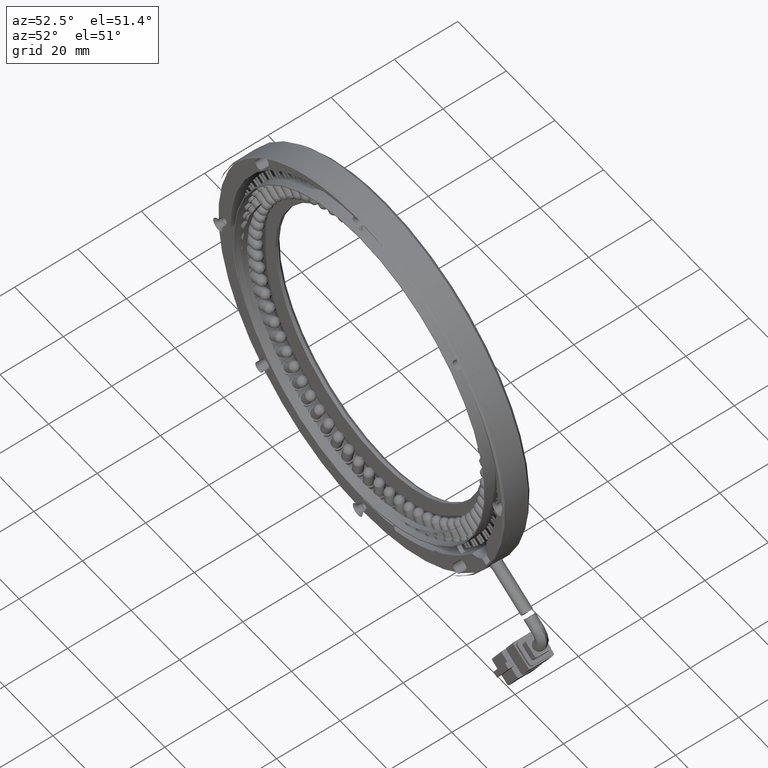
[diagram: clean part render]
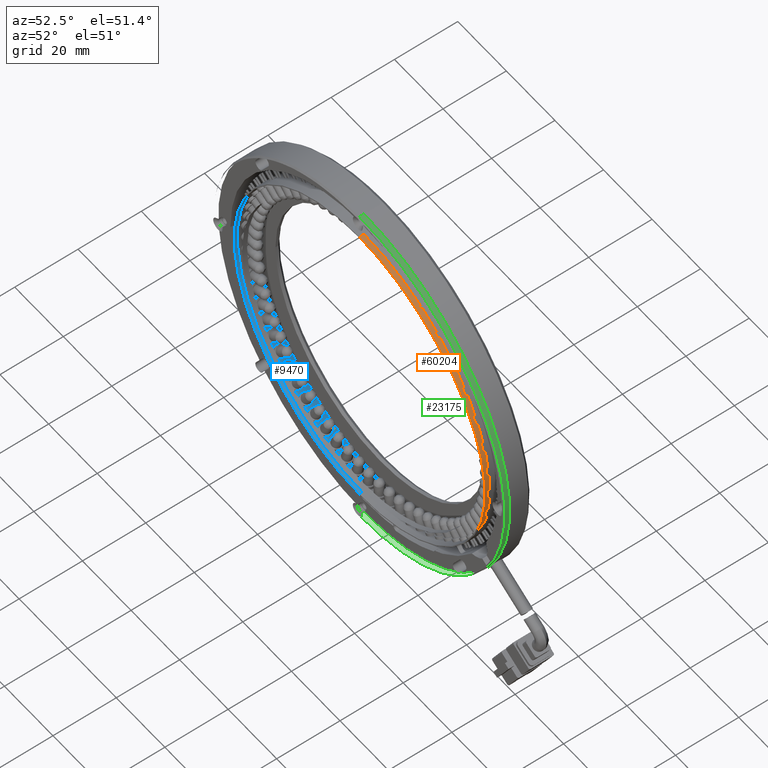
[diagram: same view with three faces highlighted in distinct colors, each labeled with its STEP entity id]
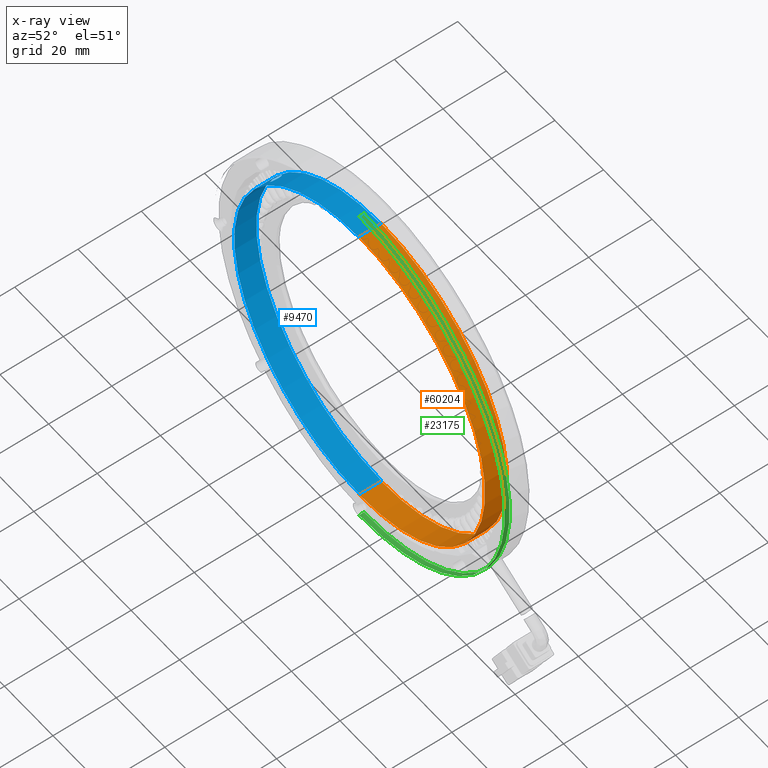
[diagram: x-ray of the same camera — body ghosted, the three highlighted faces saturated]
A machine part, auxiliary view with three faces highlighted in distinct colors.
The next image is the same camera in x-ray (body ghosted, the three faces saturated) — at least one of them is partly hidden behind the body in this view.
Their STEP definitions:

[orange] entity #60204 — the highlighted cylindrical surface (partial cylindrical patch) has radius 51.8 mm, axis along (-0, -1, -0).
#1322 = DIRECTION ( 'NONE',  ( 0.0000000000000000000, 0.0000000000000000000, -1.000000000000000000 ) ) ;
#1530 = AXIS2_PLACEMENT_3D ( 'NONE', #60681, #30969, #1322 ) ;
#2076 = VERTEX_POINT ( 'NONE', #24092 ) ;
#3813 = CARTESIAN_POINT ( 'NONE',  ( 56.45624510954999000, 26.51889671361344700, 0.0000000000000000000 ) ) ;
#5472 = DIRECTION ( 'NONE',  ( -0.0000000000000000000, -1.000000000000000000, -0.0000000000000000000 ) ) ;
#6049 = CARTESIAN_POINT ( 'NONE',  ( 56.45624510954999000, 19.51889671361662300, -51.79999999999999700 ) ) ;
#12921 = AXIS2_PLACEMENT_3D ( 'NONE', #3813, #18672, #38485 ) ;
#15209 = CARTESIAN_POINT ( 'NONE',  ( 56.45624510954999700, 19.51889671361662300, 51.79999999999999700 ) ) ;
#16463 = FACE_OUTER_BOUND ( 'NONE', #23791, .T. ) ;
#18402 = DIRECTION ( 'NONE',  ( 0.0000000000000000000, 1.000000000000000000, 0.0000000000000000000 ) ) ;
#18534 = EDGE_CURVE ( 'NONE', #2076, #25043, #30769, .T. ) ;
#18672 = DIRECTION ( 'NONE',  ( -0.0000000000000000000, -1.000000000000000000, -0.0000000000000000000 ) ) ;
#18977 = CARTESIAN_POINT ( 'NONE',  ( 56.45624510954999000, 26.51889671361344700, -51.79999999999999700 ) ) ;
#21202 = ORIENTED_EDGE ( 'NONE', *, *, #64051, .T. ) ;
#22665 = VECTOR ( 'NONE', #61092, 1000.000000000000000 ) ;
#23791 = EDGE_LOOP ( 'NONE', ( #54042, #21202, #38189, #26624 ) ) ;
#24092 = CARTESIAN_POINT ( 'NONE',  ( 56.45624510954999700, 26.51889671361344700, 51.79999999999999700 ) ) ;
#25043 = VERTEX_POINT ( 'NONE', #18977 ) ;
#26451 = CARTESIAN_POINT ( 'NONE',  ( 56.45624510954999000, 26.51889671361344700, -51.79999999999999700 ) ) ;
#26624 = ORIENTED_EDGE ( 'NONE', *, *, #59943, .F. ) ;
#30769 = CIRCLE ( 'NONE', #55047, 51.79999999999999700 ) ;
#30969 = DIRECTION ( 'NONE',  ( 0.0000000000000000000, 1.000000000000000000, 0.0000000000000000000 ) ) ;
#32054 = VECTOR ( 'NONE', #5472, 1000.000000000000000 ) ;
#35149 = CARTESIAN_POINT ( 'NONE',  ( 56.45624510954999700, 26.51889671361344700, 51.79999999999999700 ) ) ;
#37341 = LINE ( 'NONE', #26451, #22665 ) ;
#38189 = ORIENTED_EDGE ( 'NONE', *, *, #52060, .T. ) ;
#38485 = DIRECTION ( 'NONE',  ( 0.0000000000000000000, 0.0000000000000000000, -1.000000000000000000 ) ) ;
#45249 = LINE ( 'NONE', #35149, #32054 ) ;
#47951 = VERTEX_POINT ( 'NONE', #6049 ) ;
#48017 = CARTESIAN_POINT ( 'NONE',  ( 56.45624510954999000, 26.51889671361344700, 0.0000000000000000000 ) ) ;
#51206 = CIRCLE ( 'NONE', #1530, 51.79999999999999700 ) ;
#52060 = EDGE_CURVE ( 'NONE', #55364, #47951, #51206, .T. ) ;
#52992 = DIRECTION ( 'NONE',  ( 0.0000000000000000000, 0.0000000000000000000, -1.000000000000000000 ) ) ;
#54042 = ORIENTED_EDGE ( 'NONE', *, *, #18534, .F. ) ;
#55047 = AXIS2_PLACEMENT_3D ( 'NONE', #48017, #18402, #52992 ) ;
#55364 = VERTEX_POINT ( 'NONE', #15209 ) ;
#59943 = EDGE_CURVE ( 'NONE', #25043, #47951, #37341, .T. ) ;
#60204 = ADVANCED_FACE ( 'NONE', ( #16463 ), #62815, .T. ) ;
#60681 = CARTESIAN_POINT ( 'NONE',  ( 56.45624510954999000, 19.51889671361662300, 0.0000000000000000000 ) ) ;
#61092 = DIRECTION ( 'NONE',  ( -0.0000000000000000000, -1.000000000000000000, -0.0000000000000000000 ) ) ;
#62815 = CYLINDRICAL_SURFACE ( 'NONE', #12921, 51.79999999999999700 ) ;
#64051 = EDGE_CURVE ( 'NONE', #2076, #55364, #45249, .T. ) ;

[blue] entity #9470 — the highlighted cylindrical surface (partial cylindrical patch) has radius 51.5 mm, axis along (-0, -1, -0).
#1071 = FACE_OUTER_BOUND ( 'NONE', #29200, .T. ) ;
#1778 = ORIENTED_EDGE ( 'NONE', *, *, #37959, .F. ) ;
#2075 = DIRECTION ( 'NONE',  ( 0.0000000000000000000, 0.0000000000000000000, -1.000000000000000000 ) ) ;
#2183 = CIRCLE ( 'NONE', #52339, 51.50000000000000700 ) ;
#3519 = CARTESIAN_POINT ( 'NONE',  ( 15.82183111905830200, 23.28191523971116400, 31.64007584771778200 ) ) ;
#3718 = CARTESIAN_POINT ( 'NONE',  ( 15.96420179502330500, 22.52104597997329100, 31.82213792034541200 ) ) ;
#3942 = CARTESIAN_POINT ( 'NONE',  ( 17.61224199779430300, 22.00531134167158600, 33.81423396587917600 ) ) ;
#4069 = DIRECTION ( 'NONE',  ( -0.0000000000000000000, -1.000000000000000000, -0.0000000000000000000 ) ) ;
#4395 = CARTESIAN_POINT ( 'NONE',  ( 18.05715685840599200, 23.62681652584736000, 34.31851564247666200 ) ) ;
#4605 = CARTESIAN_POINT ( 'NONE',  ( 16.63140027672628200, 25.09166806025794100, 32.65339688056295100 ) ) ;
#6267 = CARTESIAN_POINT ( 'NONE',  ( 56.45624510954999000, 26.51889671361344700, -51.50000000000000700 ) ) ;
#7913 = VERTEX_POINT ( 'NONE', #6267 ) ;
#8623 = EDGE_CURVE ( 'NONE', #45458, #27995, #42910, .T. ) ;
#8805 = CARTESIAN_POINT ( 'NONE',  ( 16.08865707647075300, 22.24077871878847300, 31.97990548496514100 ) ) ;
#9028 = CARTESIAN_POINT ( 'NONE',  ( 17.77812599694261000, 22.24079336249388200, 34.00382014098288900 ) ) ;
#9351 = CARTESIAN_POINT ( 'NONE',  ( 18.06472521456695200, 23.39752681326999500, 34.32697481796381600 ) ) ;
#9457 = CARTESIAN_POINT ( 'NONE',  ( 18.00512540983537200, 23.96159293345115800, 34.26022948081043000 ) ) ;
#9470 = ADVANCED_FACE ( 'NONE', ( #53809, #1071 ), #47586, .F. ) ;
#9669 = CARTESIAN_POINT ( 'NONE',  ( 16.42866710073451800, 24.97111123671680800, 32.40454016445643500 ) ) ;
#9968 = CARTESIAN_POINT ( 'NONE',  ( 56.45624510954999700, 19.51889671361662300, 51.50000000000000700 ) ) ;
#11793 = CIRCLE ( 'NONE', #46644, 51.50000000000000700 ) ;
#13816 = CARTESIAN_POINT ( 'NONE',  ( 16.36146128001352200, 21.86826250596123700, 32.32186017698763400 ) ) ;
#14013 = CARTESIAN_POINT ( 'NONE',  ( 17.91013786196654700, 22.51876137423018800, 34.15335473477343000 ) ) ;
#14479 = CARTESIAN_POINT ( 'NONE',  ( 17.91103213274894700, 24.27400764656669500, 34.15436414545056500 ) ) ;
#14685 = CARTESIAN_POINT ( 'NONE',  ( 16.24546986802193900, 24.78974228486852000, 32.17689467491568700 ) ) ;
#15453 = VECTOR ( 'NONE', #46712, 1000.000000000000000 ) ;
#17966 = AXIS2_PLACEMENT_3D ( 'NONE', #33776, #4069, #24033 ) ;
#18061 = VECTOR ( 'NONE', #39134, 1000.000000000000000 ) ;
#18588 = CARTESIAN_POINT ( 'NONE',  ( 15.82880183272410900, 23.16823710069266100, 31.64903390642998800 ) ) ;
#18807 = CARTESIAN_POINT ( 'NONE',  ( 16.77341936141641900, 21.64768233218600500, 32.82644419635057200 ) ) ;
#18830 = DIRECTION ( 'NONE',  ( -0.0000000000000000000, -1.000000000000000000, -0.0000000000000000000 ) ) ;
#19038 = CARTESIAN_POINT ( 'NONE',  ( 18.03426338273590100, 22.93899991083010900, 34.29298854303667800 ) ) ;
#19477 = CARTESIAN_POINT ( 'NONE',  ( 17.77804143019191200, 24.55427490775124300, 34.00372154005788200 ) ) ;
#19694 = CARTESIAN_POINT ( 'NONE',  ( 16.08857517287879100, 24.55426026404595400, 31.97980466096269600 ) ) ;
#21514 = ORIENTED_EDGE ( 'NONE', *, *, #45520, .T. ) ;
#23704 = CARTESIAN_POINT ( 'NONE',  ( 17.06739908645595700, 21.65878710731372100, 33.17802590219965700 ) ) ;
#23921 = CARTESIAN_POINT ( 'NONE',  ( 18.06472521456695200, 23.39752681326999500, 34.32697481796381600 ) ) ;
#24033 = DIRECTION ( 'NONE',  ( 0.0000000000000000000, 0.0000000000000000000, -1.000000000000000000 ) ) ;
#24143 = CARTESIAN_POINT ( 'NONE',  ( 18.06472521456695200, 23.39752681326999500, 34.32697481796381600 ) ) ;
#24356 = CARTESIAN_POINT ( 'NONE',  ( 17.49033499356480100, 24.92679112057857100, 33.67420651583286400 ) ) ;
#24572 = CARTESIAN_POINT ( 'NONE',  ( 15.96503517124497200, 24.27629225230989000, 31.82319816287457200 ) ) ;
#25881 = CARTESIAN_POINT ( 'NONE',  ( 56.45624510954999700, 26.51889671361344700, 51.50000000000000700 ) ) ;
#26569 = CARTESIAN_POINT ( 'NONE',  ( 56.45624510954999700, 26.51889671361344700, 51.50000000000000700 ) ) ;
#27978 = CARTESIAN_POINT ( 'NONE',  ( 56.45624510954999000, 19.51889671361662300, -51.50000000000000700 ) ) ;
#27995 = VERTEX_POINT ( 'NONE', #9351 ) ;
#28454 = CARTESIAN_POINT ( 'NONE',  ( 15.85614650364769900, 22.94458903483651800, 31.68410465222379500 ) ) ;
#28664 = CARTESIAN_POINT ( 'NONE',  ( 17.28310865763127800, 21.73639279966866100, 33.43241847430480400 ) ) ;
#29117 = CARTESIAN_POINT ( 'NONE',  ( 18.06472521456694100, 23.51313838682939300, 34.32697481796380100 ) ) ;
#29200 = EDGE_LOOP ( 'NONE', ( #30384, #21514, #38498, #1778 ) ) ;
#29340 = CARTESIAN_POINT ( 'NONE',  ( 17.06748070422292300, 25.14737129435397700, 33.17871812705380600 ) ) ;
#29560 = CARTESIAN_POINT ( 'NONE',  ( 15.84982747467196200, 23.85605371571017500, 31.67612018367067300 ) ) ;
#30384 = ORIENTED_EDGE ( 'NONE', *, *, #62054, .T. ) ;
#30848 = B_SPLINE_CURVE_WITH_KNOTS ( 'NONE', 3,
 ( #24143, #29117, #4395, #39081, #9457, #44039, #14479, #49042, #19477, #54048, #24356, #59039, #29340, #63950, #34306, #4605, #39284, #9669, #44268, #14685, #49270, #19694, #54249, #24572, #59259, #29560, #64160, #34505 ),
 .UNSPECIFIED., .F., .F.,
 ( 4, 2, 2, 2, 2, 2, 2, 2, 2, 2, 2, 2, 2, 4 ),
 ( 0.005470559907291505700, 0.005812470012973477500, 0.006154380118655449300, 0.006496290224337421100, 0.006838200330019392900, 0.007522020541383331300, 0.008205840752747269700, 0.008547750858429226800, 0.008889660964111183900, 0.009231571069793142700, 0.009573481175475101500, 0.009915391281157058500, 0.01025730138683901600, 0.01094112159820291900 ),
 .UNSPECIFIED. ) ;
#30875 = CARTESIAN_POINT ( 'NONE',  ( 15.82183111905831700, 23.39752681326999500, 31.64007584771779600 ) ) ;
#31726 = DIRECTION ( 'NONE',  ( 0.0000000000000000000, 1.000000000000000000, 0.0000000000000000000 ) ) ;
#32702 = LINE ( 'NONE', #48881, #18061 ) ;
#33433 = CARTESIAN_POINT ( 'NONE',  ( 15.93101644636916700, 22.62155119434126500, 31.77983278805097100 ) ) ;
#33651 = CARTESIAN_POINT ( 'NONE',  ( 17.48795190522087100, 21.87870679009193300, 33.67092397286921800 ) ) ;
#33776 = CARTESIAN_POINT ( 'NONE',  ( 56.45624510954999000, 26.51889671361344700, 0.0000000000000000000 ) ) ;
#34306 = CARTESIAN_POINT ( 'NONE',  ( 16.77408586262497200, 25.13626651922635000, 32.82664818862452400 ) ) ;
#34505 = CARTESIAN_POINT ( 'NONE',  ( 15.82183111905831700, 23.39752681326999500, 31.64007584771779600 ) ) ;
#37959 = EDGE_CURVE ( 'NONE', #7913, #61282, #32702, .T. ) ;
#38393 = CARTESIAN_POINT ( 'NONE',  ( 16.04281205156283000, 22.33083401097884700, 31.92191194265441100 ) ) ;
#38498 = ORIENTED_EDGE ( 'NONE', *, *, #43360, .T. ) ;
#38623 = CARTESIAN_POINT ( 'NONE',  ( 17.67037369583239600, 22.07758770405765200, 33.88086275388990700 ) ) ;
#39081 = CARTESIAN_POINT ( 'NONE',  ( 18.02753650446286200, 23.85046459170365200, 34.28534452747066300 ) ) ;
#39134 = DIRECTION ( 'NONE',  ( -0.0000000000000000000, -1.000000000000000000, -0.0000000000000000000 ) ) ;
#39284 = CARTESIAN_POINT ( 'NONE',  ( 16.56233062884775400, 25.05866082687138900, 32.56895472575217800 ) ) ;
#41687 = LINE ( 'NONE', #26569, #15453 ) ;
#42910 = B_SPLINE_CURVE_WITH_KNOTS ( 'NONE', 3,
 ( #58133, #3519, #18588, #28454, #63079, #33433, #3718, #38393, #8805, #43369, #13816, #48400, #18807, #53395, #23704, #58369, #28664, #63292, #33651, #3942, #38623, #9028, #43590, #14013, #48612, #19038, #53614, #23921 ),
 .UNSPECIFIED., .F., .F.,
 ( 4, 2, 2, 2, 2, 2, 2, 2, 2, 2, 2, 2, 2, 4 ),
 ( 3.558171155511717500E-016, 0.0003419099942060566700, 0.0006838199884117575000, 0.001025729982617458300, 0.001367639976823159200, 0.002051459965234560500, 0.002735279953645962300, 0.003077189947851654900, 0.003419099942057348000, 0.003761009936263040700, 0.004102919930468734200, 0.004444829924674426400, 0.004786739918880119500, 0.005470559907291505700 ),
 .UNSPECIFIED. ) ;
#43360 = EDGE_CURVE ( 'NONE', #50003, #61282, #2183, .T. ) ;
#43369 = CARTESIAN_POINT ( 'NONE',  ( 16.23935955533692900, 21.99864672332027700, 32.16952268937401300 ) ) ;
#43590 = CARTESIAN_POINT ( 'NONE',  ( 17.82612268557936700, 22.32932161681576800, 34.05829803572862600 ) ) ;
#44039 = CARTESIAN_POINT ( 'NONE',  ( 17.94672682671460600, 24.17350243219858900, 34.19457459690851000 ) ) ;
#44268 = CARTESIAN_POINT ( 'NONE',  ( 16.36426518218936400, 24.91634683644829800, 32.32479144479381000 ) ) ;
#45458 = VERTEX_POINT ( 'NONE', #30875 ) ;
#45520 = EDGE_CURVE ( 'NONE', #59293, #50003, #41687, .T. ) ;
#46644 = AXIS2_PLACEMENT_3D ( 'NONE', #61414, #31726, #2075 ) ;
#46712 = DIRECTION ( 'NONE',  ( -0.0000000000000000000, -1.000000000000000000, -0.0000000000000000000 ) ) ;
#47586 = CYLINDRICAL_SURFACE ( 'NONE', #17966, 51.50000000000000700 ) ;
#48400 = CARTESIAN_POINT ( 'NONE',  ( 16.62709635305744300, 21.69367369167754200, 32.64863312561776400 ) ) ;
#48425 = CARTESIAN_POINT ( 'NONE',  ( 56.45624510954999000, 19.51889671361662300, 0.0000000000000000000 ) ) ;
#48612 = CARTESIAN_POINT ( 'NONE',  ( 17.94654081530604000, 22.62097309054727700, 34.19436519263093300 ) ) ;
#48881 = CARTESIAN_POINT ( 'NONE',  ( 56.45624510954999000, 26.51889671361344700, -51.50000000000000700 ) ) ;
#49042 = CARTESIAN_POINT ( 'NONE',  ( 17.82691000536307500, 24.46421961556134800, 34.05919116795674000 ) ) ;
#49270 = CARTESIAN_POINT ( 'NONE',  ( 16.19030041989384500, 24.71746592248236900, 32.10779314308150100 ) ) ;
#49711 = ORIENTED_EDGE ( 'NONE', *, *, #8623, .T. ) ;
#50003 = VERTEX_POINT ( 'NONE', #9968 ) ;
#52339 = AXIS2_PLACEMENT_3D ( 'NONE', #48425, #18830, #53415 ) ;
#53395 = CARTESIAN_POINT ( 'NONE',  ( 16.99281612333500700, 21.64744965997159900, 33.08928523152442800 ) ) ;
#53415 = DIRECTION ( 'NONE',  ( 0.0000000000000000000, 0.0000000000000000000, -1.000000000000000000 ) ) ;
#53614 = CARTESIAN_POINT ( 'NONE',  ( 18.06472521456698000, 23.16630374153977100, 34.32697481796384400 ) ) ;
#53809 = FACE_BOUND ( 'NONE', #64040, .T. ) ;
#54048 = CARTESIAN_POINT ( 'NONE',  ( 17.61840354360300900, 24.79640690321976100, 33.82156318447184200 ) ) ;
#54249 = CARTESIAN_POINT ( 'NONE',  ( 16.04355013081285400, 24.46573200972453300, 31.92284617851341700 ) ) ;
#55494 = ORIENTED_EDGE ( 'NONE', *, *, #60886, .T. ) ;
#58133 = CARTESIAN_POINT ( 'NONE',  ( 15.82183111905831700, 23.39752681326999500, 31.64007584771779600 ) ) ;
#58369 = CARTESIAN_POINT ( 'NONE',  ( 17.21236692744138000, 21.70338556628212200, 33.34937209342724900 ) ) ;
#59039 = CARTESIAN_POINT ( 'NONE',  ( 17.21628498599418600, 25.10137993486251400, 33.35445795002144800 ) ) ;
#59259 = CARTESIAN_POINT ( 'NONE',  ( 15.93118924383054100, 24.17408053599337900, 31.78005322269676100 ) ) ;
#59293 = VERTEX_POINT ( 'NONE', #25881 ) ;
#60886 = EDGE_CURVE ( 'NONE', #27995, #45458, #30848, .T. ) ;
#61282 = VERTEX_POINT ( 'NONE', #27978 ) ;
#61414 = CARTESIAN_POINT ( 'NONE',  ( 56.45624510954999000, 26.51889671361344700, 0.0000000000000000000 ) ) ;
#62054 = EDGE_CURVE ( 'NONE', #7913, #59293, #11793, .T. ) ;
#63079 = CARTESIAN_POINT ( 'NONE',  ( 15.87685291673459900, 22.83346069308840500, 31.71064268508676100 ) ) ;
#63292 = CARTESIAN_POINT ( 'NONE',  ( 17.42099403999518300, 21.82394238982312400, 33.59330883462507700 ) ) ;
#63950 = CARTESIAN_POINT ( 'NONE',  ( 16.84807180314700400, 25.14760396656840100, 32.91588722506440900 ) ) ;
#64040 = EDGE_LOOP ( 'NONE', ( #55494, #49711 ) ) ;
#64160 = CARTESIAN_POINT ( 'NONE',  ( 15.82183111905834500, 23.62875003577668000, 31.64007584771783100 ) ) ;

[green] entity #23175 — the highlighted cylindrical surface (partial cylindrical patch) has radius 60 mm, axis along (0, -1, 0).
#439 = CARTESIAN_POINT ( 'NONE',  ( 56.45624510954999000, 19.51889671361281500, -60.00000000000098100 ) ) ;
#2728 = AXIS2_PLACEMENT_3D ( 'NONE', #21999, #56592, #26959 ) ;
#4432 = VERTEX_POINT ( 'NONE', #439 ) ;
#4673 = CARTESIAN_POINT ( 'NONE',  ( 56.45624510954999700, 21.01889671361719500, 60.00000000000000000 ) ) ;
#5116 = EDGE_CURVE ( 'NONE', #34824, #4432, #51551, .T. ) ;
#5388 = ORIENTED_EDGE ( 'NONE', *, *, #41185, .F. ) ;
#5436 = VECTOR ( 'NONE', #54765, 1000.000000000000000 ) ;
#10783 = CARTESIAN_POINT ( 'NONE',  ( 56.45624510954999700, 19.51889671361281500, 60.00000000000098100 ) ) ;
#11250 = EDGE_CURVE ( 'NONE', #18902, #41426, #15938, .T. ) ;
#12381 = ORIENTED_EDGE ( 'NONE', *, *, #55369, .T. ) ;
#13417 = CARTESIAN_POINT ( 'NONE',  ( 56.45624510954999000, 21.01889671361719500, 0.0000000000000000000 ) ) ;
#15938 = CIRCLE ( 'NONE', #2728, 60.00000000000000000 ) ;
#18902 = VERTEX_POINT ( 'NONE', #4673 ) ;
#20247 = CARTESIAN_POINT ( 'NONE',  ( 56.45624510954999000, 19.51889671361281500, 0.0000000000000000000 ) ) ;
#21212 = FACE_OUTER_BOUND ( 'NONE', #44403, .T. ) ;
#21999 = CARTESIAN_POINT ( 'NONE',  ( 56.45624510954999000, 21.01889671361719500, 0.0000000000000000000 ) ) ;
#23175 = ADVANCED_FACE ( 'NONE', ( #21212 ), #54449, .T. ) ;
#23322 = DIRECTION ( 'NONE',  ( 0.0000000000000000000, -1.000000000000000000, 0.0000000000000000000 ) ) ;
#25129 = DIRECTION ( 'NONE',  ( 0.0000000000000000000, 0.0000000000000000000, 1.000000000000000000 ) ) ;
#25310 = CARTESIAN_POINT ( 'NONE',  ( 56.45624510954999700, 21.01889671361719500, 60.00000000000000000 ) ) ;
#26959 = DIRECTION ( 'NONE',  ( 0.0000000000000000000, 0.0000000000000000000, -1.000000000000000000 ) ) ;
#29441 = DIRECTION ( 'NONE',  ( 0.0000000000000000000, -1.000000000000000000, 0.0000000000000000000 ) ) ;
#34824 = VERTEX_POINT ( 'NONE', #10783 ) ;
#37867 = LINE ( 'NONE', #59145, #64214 ) ;
#38439 = DIRECTION ( 'NONE',  ( 0.0000000000000000000, 0.0000000000000000000, -1.000000000000000000 ) ) ;
#39828 = AXIS2_PLACEMENT_3D ( 'NONE', #13417, #23322, #38439 ) ;
#40454 = CARTESIAN_POINT ( 'NONE',  ( 56.45624510954999000, 21.01889671361719500, -60.00000000000000000 ) ) ;
#40980 = ORIENTED_EDGE ( 'NONE', *, *, #5116, .T. ) ;
#41185 = EDGE_CURVE ( 'NONE', #41426, #4432, #37867, .T. ) ;
#41426 = VERTEX_POINT ( 'NONE', #40454 ) ;
#44403 = EDGE_LOOP ( 'NONE', ( #47942, #12381, #40980, #5388 ) ) ;
#44975 = LINE ( 'NONE', #25310, #5436 ) ;
#47942 = ORIENTED_EDGE ( 'NONE', *, *, #11250, .F. ) ;
#49235 = AXIS2_PLACEMENT_3D ( 'NONE', #20247, #54789, #25129 ) ;
#51551 = CIRCLE ( 'NONE', #49235, 60.00000000000098100 ) ;
#54449 = CYLINDRICAL_SURFACE ( 'NONE', #39828, 60.00000000000000000 ) ;
#54765 = DIRECTION ( 'NONE',  ( 0.0000000000000000000, -1.000000000000000000, 0.0000000000000000000 ) ) ;
#54789 = DIRECTION ( 'NONE',  ( 0.0000000000000000000, 1.000000000000000000, 0.0000000000000000000 ) ) ;
#55369 = EDGE_CURVE ( 'NONE', #18902, #34824, #44975, .T. ) ;
#56592 = DIRECTION ( 'NONE',  ( -0.0000000000000000000, 1.000000000000000000, -0.0000000000000000000 ) ) ;
#59145 = CARTESIAN_POINT ( 'NONE',  ( 56.45624510954999000, 21.01889671361719500, -60.00000000000000000 ) ) ;
#64214 = VECTOR ( 'NONE', #29441, 1000.000000000000000 ) ;